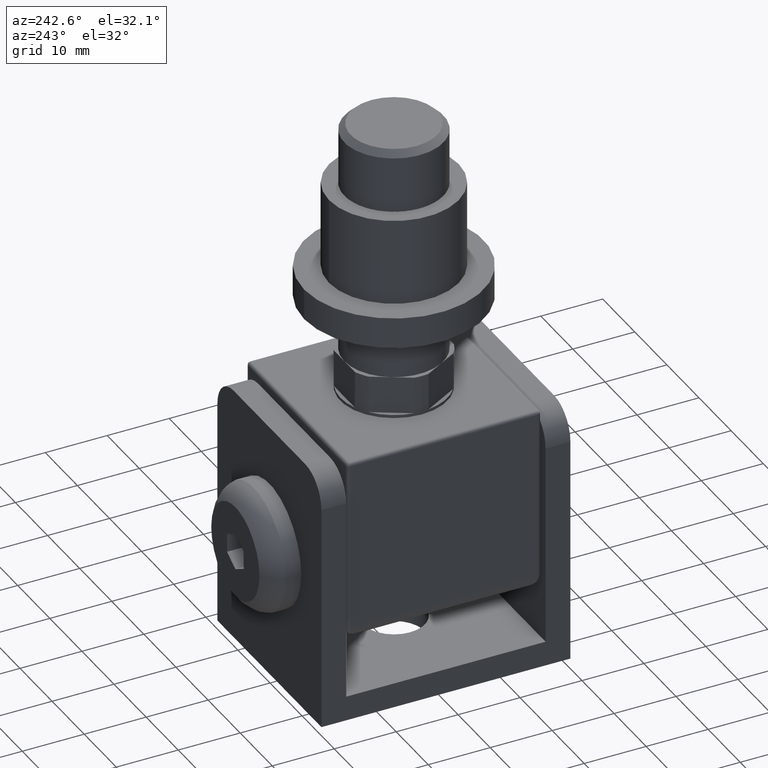
[diagram: clean part render]
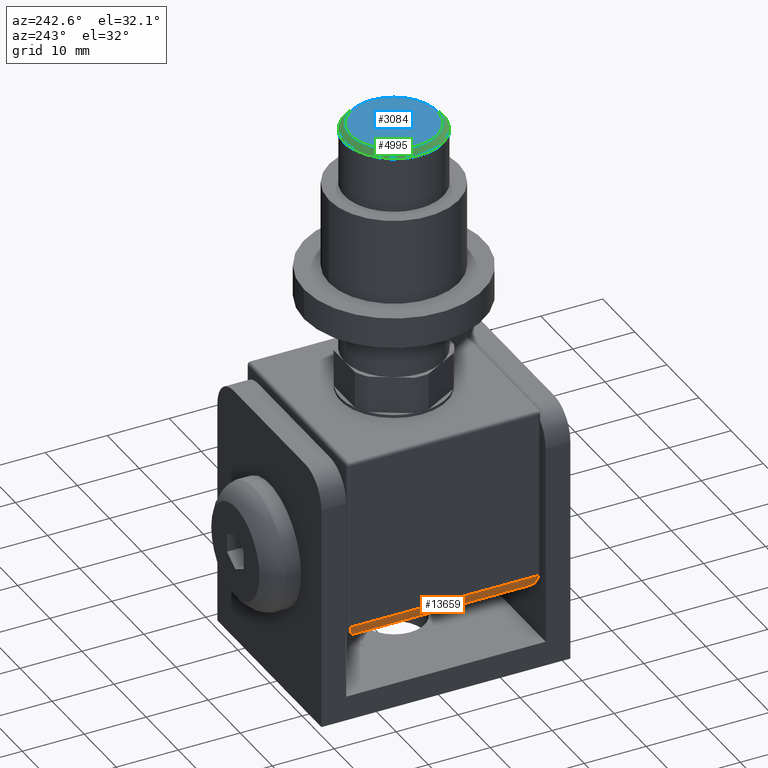
[diagram: same view with three faces highlighted in distinct colors, each labeled with its STEP entity id]
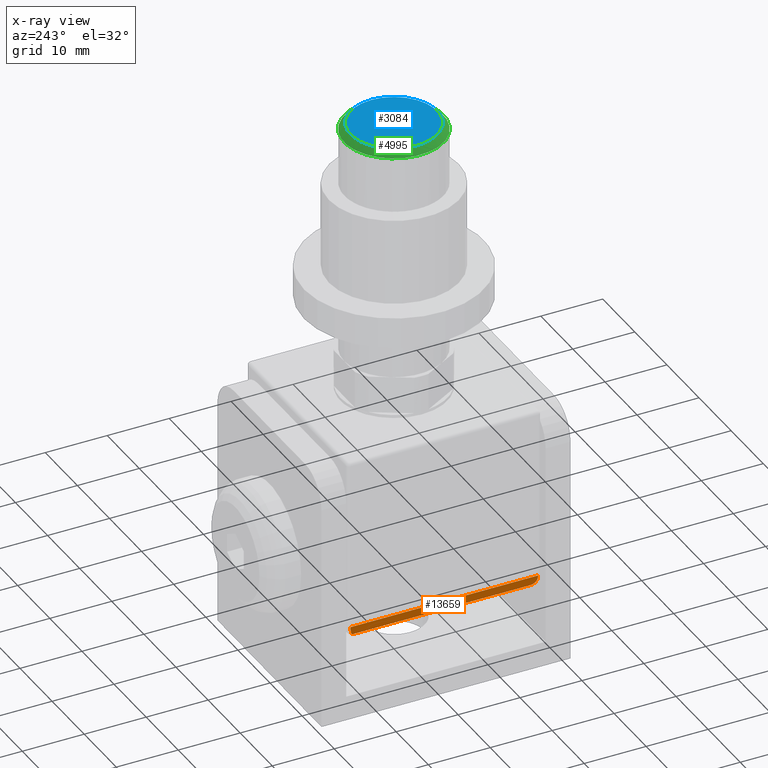
[diagram: x-ray of the same camera — body ghosted, the three highlighted faces saturated]
A machine part, auxiliary view with three faces highlighted in distinct colors.
The next image is the same camera in x-ray (body ghosted, the three faces saturated) — at least one of them is partly hidden behind the body in this view.
Their STEP definitions:

[orange] entity #13659 — the highlighted cylindrical surface (edge-blend (fillet) strip) has radius 2.5 mm, axis along (0, -1, 0).
#160 = CARTESIAN_POINT ( 'NONE',  ( -13.19999999999999751, 15.65000000000000036, -15.09999999999999964 ) ) ;
#898 = CARTESIAN_POINT ( 'NONE',  ( -15.69999999999999929, 15.15000000000000036, -12.59999999999999787 ) ) ;
#1847 = VERTEX_POINT ( 'NONE', #7449 ) ;
#2584 = EDGE_CURVE ( 'NONE', #15225, #15478, #7335, .T. ) ;
#2679 = CARTESIAN_POINT ( 'NONE',  ( -15.69999999999999929, -15.15000000000000036, -12.59999999999999787 ) ) ;
#3118 = CARTESIAN_POINT ( 'NONE',  ( -13.19999999999999751, 13.15000000000000036, -15.09999999999999964 ) ) ;
#3319 = DIRECTION ( 'NONE',  ( 0.000000000000000000, 0.000000000000000000, -1.000000000000000000 ) ) ;
#3565 = CARTESIAN_POINT ( 'NONE',  ( -13.19999999999999751, -13.14999999999999858, -15.09999999999999964 ) ) ;
#4266 = CARTESIAN_POINT ( 'NONE',  ( -15.69999999999999929, 15.14999999999999858, -14.06446609406726012 ) ) ;
#4674 = CARTESIAN_POINT ( 'NONE',  ( -13.19999999999999751, 13.15000000000000036, -15.09999999999999964 ) ) ;
#5624 = CARTESIAN_POINT ( 'NONE',  ( -13.19999999999999751, 15.65000000000000036, -12.59999999999999787 ) ) ;
#5744 = ORIENTED_EDGE ( 'NONE', *, *, #2584, .T. ) ;
#5976 = CYLINDRICAL_SURFACE ( 'NONE', #11160, 2.500000000000000444 ) ;
#6196 = CARTESIAN_POINT ( 'NONE',  ( -15.69999999999999929, -15.14999999999999858, -14.06446609406726012 ) ) ;
#6322 = EDGE_CURVE ( 'NONE', #7374, #1847, #9462, .T. ) ;
#6361 = CARTESIAN_POINT ( 'NONE',  ( -15.69999999999999929, 15.15000000000000036, -12.59999999999999787 ) ) ;
#7040 = DIRECTION ( 'NONE',  ( 0.000000000000000000, -1.000000000000000000, 0.000000000000000000 ) ) ;
#7335 =( BOUNDED_CURVE ( )  B_SPLINE_CURVE ( 3, ( #898, #4266, #11461, #3118 ),
 .UNSPECIFIED., .F., .F. ) 
 B_SPLINE_CURVE_WITH_KNOTS ( ( 4, 4 ),
 ( 3.141592653589793116, 4.712388980384689674 ),
 .UNSPECIFIED. ) 
 CURVE ( )  GEOMETRIC_REPRESENTATION_ITEM ( )  RATIONAL_B_SPLINE_CURVE ( ( 1.000000000000000000, 0.8047378541243649375, 0.8047378541243649375, 1.000000000000000000 ) ) 
 REPRESENTATION_ITEM ( '' )  );
#7374 = VERTEX_POINT ( 'NONE', #3565 ) ;
#7449 = CARTESIAN_POINT ( 'NONE',  ( -15.69999999999999929, -15.15000000000000036, -12.59999999999999787 ) ) ;
#8833 = VECTOR ( 'NONE', #13371, 1000.000000000000000 ) ;
#9189 = EDGE_CURVE ( 'NONE', #7374, #15478, #13467, .T. ) ;
#9462 =( BOUNDED_CURVE ( )  B_SPLINE_CURVE ( 3, ( #9830, #9636, #6196, #2679 ),
 .UNSPECIFIED., .F., .F. ) 
 B_SPLINE_CURVE_WITH_KNOTS ( ( 4, 4 ),
 ( 4.712388980384689674, 6.283185307179586232 ),
 .UNSPECIFIED. ) 
 CURVE ( )  GEOMETRIC_REPRESENTATION_ITEM ( )  RATIONAL_B_SPLINE_CURVE ( ( 1.000000000000000000, 0.8047378541243649375, 0.8047378541243649375, 1.000000000000000000 ) ) 
 REPRESENTATION_ITEM ( '' )  );
#9636 = CARTESIAN_POINT ( 'NONE',  ( -14.66446609406725798, -14.32157287525380696, -15.09999999999999964 ) ) ;
#9830 = CARTESIAN_POINT ( 'NONE',  ( -13.19999999999999751, -13.14999999999999858, -15.09999999999999964 ) ) ;
#10033 = ORIENTED_EDGE ( 'NONE', *, *, #6322, .T. ) ;
#10452 = DIRECTION ( 'NONE',  ( 0.000000000000000000, -1.000000000000000000, 0.000000000000000000 ) ) ;
#11160 = AXIS2_PLACEMENT_3D ( 'NONE', #5624, #10452, #3319 ) ;
#11461 = CARTESIAN_POINT ( 'NONE',  ( -14.66446609406725798, 14.32157287525381051, -15.09999999999999964 ) ) ;
#11747 = LINE ( 'NONE', #14140, #15089 ) ;
#11997 = EDGE_LOOP ( 'NONE', ( #12744, #10033, #14017, #5744 ) ) ;
#12630 = FACE_OUTER_BOUND ( 'NONE', #11997, .T. ) ;
#12744 = ORIENTED_EDGE ( 'NONE', *, *, #9189, .F. ) ;
#13371 = DIRECTION ( 'NONE',  ( -0.000000000000000000, 1.000000000000000000, -0.000000000000000000 ) ) ;
#13467 = LINE ( 'NONE', #160, #8833 ) ;
#13659 = ADVANCED_FACE ( 'NONE', ( #12630 ), #5976, .T. ) ;
#13751 = EDGE_CURVE ( 'NONE', #15225, #1847, #11747, .T. ) ;
#14017 = ORIENTED_EDGE ( 'NONE', *, *, #13751, .F. ) ;
#14140 = CARTESIAN_POINT ( 'NONE',  ( -15.69999999999999929, 15.65000000000000036, -12.59999999999999787 ) ) ;
#15089 = VECTOR ( 'NONE', #7040, 1000.000000000000000 ) ;
#15225 = VERTEX_POINT ( 'NONE', #6361 ) ;
#15478 = VERTEX_POINT ( 'NONE', #4674 ) ;

[blue] entity #3084 — the highlighted planar face has unit normal (0, 0, 1).
#1095 = EDGE_LOOP ( 'NONE', ( #9478 ) ) ;
#1351 = CARTESIAN_POINT ( 'NONE',  ( 0.000000000000000000, 0.000000000000000000, 59.60000000000000142 ) ) ;
#1561 = AXIS2_PLACEMENT_3D ( 'NONE', #1351, #2556, #10925 ) ;
#2145 = EDGE_CURVE ( 'NONE', #6624, #6624, #12159, .T. ) ;
#2556 = DIRECTION ( 'NONE',  ( 0.000000000000000000, 0.000000000000000000, 1.000000000000000000 ) ) ;
#2744 = AXIS2_PLACEMENT_3D ( 'NONE', #5442, #13857, #10187 ) ;
#3084 = ADVANCED_FACE ( 'NONE', ( #15487 ), #5041, .T. ) ;
#5041 = PLANE ( 'NONE',  #1561 ) ;
#5442 = CARTESIAN_POINT ( 'NONE',  ( 0.000000000000000000, 0.000000000000000000, 59.60000000000000142 ) ) ;
#6624 = VERTEX_POINT ( 'NONE', #8164 ) ;
#8164 = CARTESIAN_POINT ( 'NONE',  ( 7.000000000000013323, 0.000000000000000000, 59.60000000000000142 ) ) ;
#9478 = ORIENTED_EDGE ( 'NONE', *, *, #2145, .T. ) ;
#10187 = DIRECTION ( 'NONE',  ( 1.000000000000000000, 0.000000000000000000, 0.000000000000000000 ) ) ;
#10925 = DIRECTION ( 'NONE',  ( 1.000000000000000000, 0.000000000000000000, -0.000000000000000000 ) ) ;
#12159 = CIRCLE ( 'NONE', #2744, 7.000000000000013323 ) ;
#13857 = DIRECTION ( 'NONE',  ( 0.000000000000000000, 0.000000000000000000, 1.000000000000000000 ) ) ;
#15487 = FACE_OUTER_BOUND ( 'NONE', #1095, .T. ) ;

[green] entity #4995 — the highlighted conical surface has half-angle 45 deg.
#1874 = CARTESIAN_POINT ( 'NONE',  ( 0.000000000000000000, 0.000000000000000000, 58.60000000000000142 ) ) ;
#2145 = EDGE_CURVE ( 'NONE', #6624, #6624, #12159, .T. ) ;
#2744 = AXIS2_PLACEMENT_3D ( 'NONE', #5442, #13857, #10187 ) ;
#2882 = VERTEX_POINT ( 'NONE', #8109 ) ;
#3031 = AXIS2_PLACEMENT_3D ( 'NONE', #3562, #14112, #15286 ) ;
#3562 = CARTESIAN_POINT ( 'NONE',  ( 0.000000000000000000, 0.000000000000000000, 59.60000000000000142 ) ) ;
#4995 = ADVANCED_FACE ( 'NONE', ( #6875, #9878 ), #8742, .T. ) ;
#5442 = CARTESIAN_POINT ( 'NONE',  ( 0.000000000000000000, 0.000000000000000000, 59.60000000000000142 ) ) ;
#5618 = EDGE_LOOP ( 'NONE', ( #10397 ) ) ;
#6497 = EDGE_LOOP ( 'NONE', ( #6863 ) ) ;
#6624 = VERTEX_POINT ( 'NONE', #8164 ) ;
#6863 = ORIENTED_EDGE ( 'NONE', *, *, #14699, .F. ) ;
#6875 = FACE_OUTER_BOUND ( 'NONE', #6497, .T. ) ;
#8109 = CARTESIAN_POINT ( 'NONE',  ( 8.000000000000000000, 0.000000000000000000, 58.60000000000000142 ) ) ;
#8164 = CARTESIAN_POINT ( 'NONE',  ( 7.000000000000013323, 0.000000000000000000, 59.60000000000000142 ) ) ;
#8742 = CONICAL_SURFACE ( 'NONE', #3031, 7.000000000000013323, 0.7853981633974447263 ) ;
#9878 = FACE_BOUND ( 'NONE', #5618, .T. ) ;
#10187 = DIRECTION ( 'NONE',  ( 1.000000000000000000, 0.000000000000000000, 0.000000000000000000 ) ) ;
#10397 = ORIENTED_EDGE ( 'NONE', *, *, #2145, .F. ) ;
#10411 = DIRECTION ( 'NONE',  ( 1.000000000000000000, 0.000000000000000000, 0.000000000000000000 ) ) ;
#11381 = DIRECTION ( 'NONE',  ( 0.000000000000000000, 0.000000000000000000, -1.000000000000000000 ) ) ;
#11885 = AXIS2_PLACEMENT_3D ( 'NONE', #1874, #11381, #10411 ) ;
#12159 = CIRCLE ( 'NONE', #2744, 7.000000000000013323 ) ;
#12768 = CIRCLE ( 'NONE', #11885, 8.000000000000000000 ) ;
#13857 = DIRECTION ( 'NONE',  ( 0.000000000000000000, 0.000000000000000000, 1.000000000000000000 ) ) ;
#14112 = DIRECTION ( 'NONE',  ( 0.000000000000000000, 0.000000000000000000, -1.000000000000000000 ) ) ;
#14699 = EDGE_CURVE ( 'NONE', #2882, #2882, #12768, .T. ) ;
#15286 = DIRECTION ( 'NONE',  ( -1.000000000000000000, 0.000000000000000000, 0.000000000000000000 ) ) ;